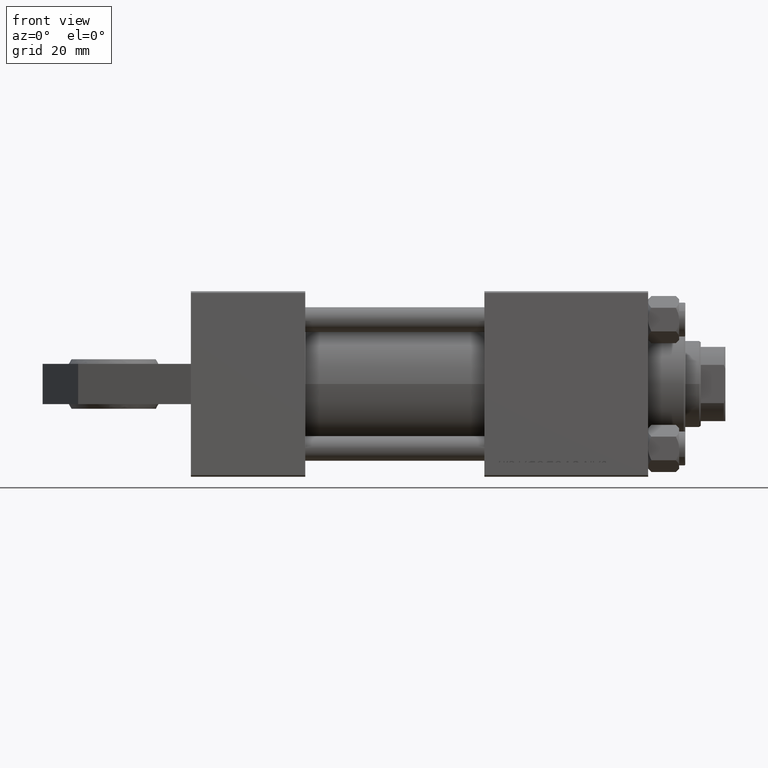
[diagram: clean part render]
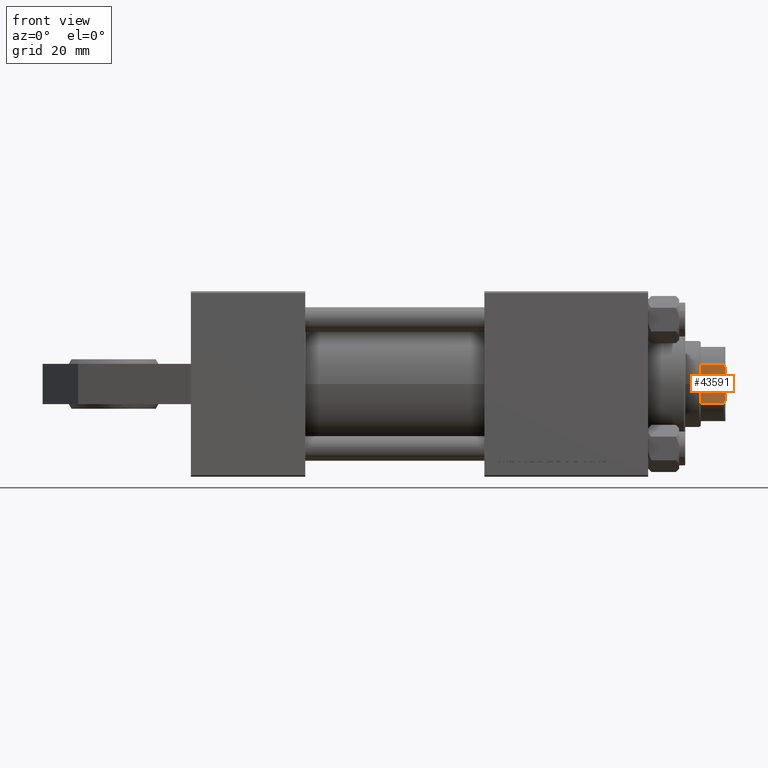
[diagram: same view with one face highlighted and labeled with its STEP entity id]
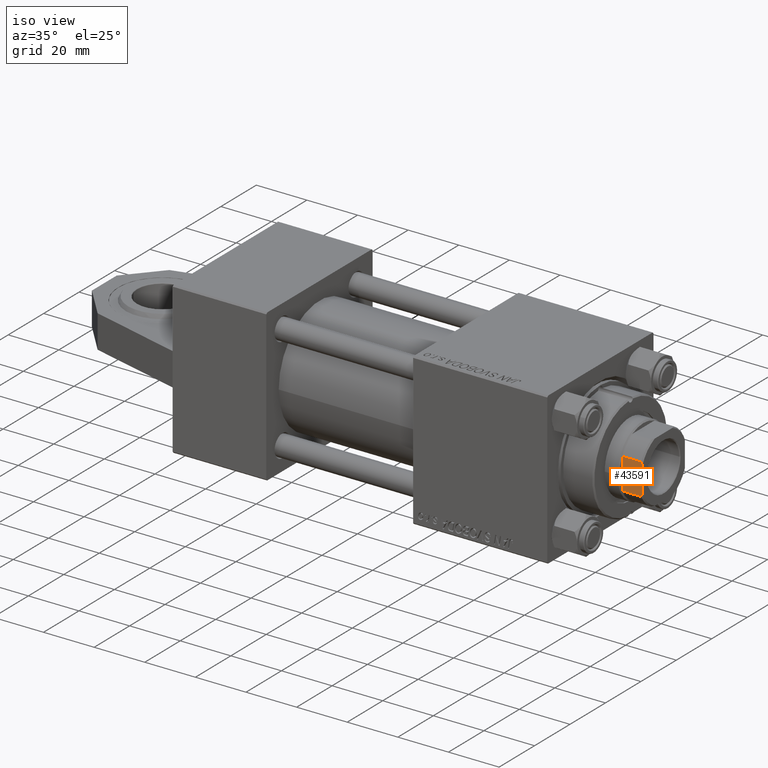
[diagram: same view with one face highlighted and labeled with its STEP entity id]
A machine part, front view. The second image highlights one B-rep face of the part: STEP entity #43591.
A second angle (iso view) of the same face is appended — the face is thin or edge-on in the first view.
In plain terms, the highlighted planar face has unit normal (0, 1, 0).
Its self-contained STEP definition (entity closure, byte-faithful):
#358 = CARTESIAN_POINT ( 'NONE',  ( 11.99999999999999645, 6.184658438426496652, -0.001000000000001000089 ) ) ;
#1015 = VECTOR ( 'NONE', #14133, 1000.000000000000000 ) ;
#1654 = CARTESIAN_POINT ( 'NONE',  ( 11.99999999999999645, 11.99999999999999645, 128.0000000000000000 ) ) ;
#2014 = DIRECTION ( 'NONE',  ( -2.891205793294678326E-16, 1.000000000000000000, -0.000000000000000000 ) ) ;
#3514 = CARTESIAN_POINT ( 'NONE',  ( 11.99999999999999645, 6.184658438426496652, 135.5000000000000284 ) ) ;
#3728 = CARTESIAN_POINT ( 'NONE',  ( 11.99999999999999645, 6.184658438426496652, 135.5000000000000284 ) ) ;
#5475 = LINE ( 'NONE', #1654, #1015 ) ;
#6998 = ORIENTED_EDGE ( 'NONE', *, *, #43619, .T. ) ;
#7082 = CARTESIAN_POINT ( 'NONE',  ( 11.99999999999999645, 5.794808544282254559, 135.6785991435214385 ) ) ;
#7432 = VERTEX_POINT ( 'NONE', #48240 ) ;
#7464 = CARTESIAN_POINT ( 'NONE',  ( 12.00000000000000178, -5.000000000000056843, 136.0000000000000000 ) ) ;
#8463 = ORIENTED_EDGE ( 'NONE', *, *, #48147, .T. ) ;
#10186 = CARTESIAN_POINT ( 'NONE',  ( 11.99999999999999467, -6.184658438426501981, -0.001000000000001000089 ) ) ;
#11683 = VECTOR ( 'NONE', #2014, 1000.000000000000000 ) ;
#12128 = VERTEX_POINT ( 'NONE', #3728 ) ;
#12834 = VERTEX_POINT ( 'NONE', #39105 ) ;
#14133 = DIRECTION ( 'NONE',  ( -2.891205793294678326E-16, 1.000000000000000000, -0.000000000000000000 ) ) ;
#14611 = EDGE_CURVE ( 'NONE', #15666, #47123, #17506, .T. ) ;
#15129 = EDGE_CURVE ( 'NONE', #15666, #12834, #48321, .T. ) ;
#15666 = VERTEX_POINT ( 'NONE', #48959 ) ;
#16322 = EDGE_CURVE ( 'NONE', #12128, #12834, #16736, .T. ) ;
#16736 = B_SPLINE_CURVE_WITH_KNOTS ( 'NONE', 3,
 ( #3514, #7082, #23104, #22597 ),
 .UNSPECIFIED., .F., .F.,
 ( 4, 4 ),
 ( 0.000000000000000000, 0.001285852097146085102 ),
 .UNSPECIFIED. ) ;
#16995 = ORIENTED_EDGE ( 'NONE', *, *, #16322, .T. ) ;
#17454 = CARTESIAN_POINT ( 'NONE',  ( 11.99999999999999467, -6.184658438426501981, 135.5000000000000284 ) ) ;
#17506 = B_SPLINE_CURVE_WITH_KNOTS ( 'NONE', 3,
 ( #7464, #41826, #22980, #17454 ),
 .UNSPECIFIED., .F., .F.,
 ( 4, 4 ),
 ( 8.673617379884035472E-19, 0.001285852097146073176 ),
 .UNSPECIFIED. ) ;
#17788 = LINE ( 'NONE', #10186, #46996 ) ;
#18189 = EDGE_CURVE ( 'NONE', #7432, #47123, #17788, .T. ) ;
#19564 = CARTESIAN_POINT ( 'NONE',  ( 11.99999999999999645, 6.184658438426496652, 128.0000000000000853 ) ) ;
#19818 = CARTESIAN_POINT ( 'NONE',  ( 11.99999999999999467, -6.184658438426501981, 135.5000000000000284 ) ) ;
#20175 = DIRECTION ( 'NONE',  ( 2.891205793294678326E-16, -1.000000000000000000, 0.000000000000000000 ) ) ;
#20589 = ORIENTED_EDGE ( 'NONE', *, *, #18189, .F. ) ;
#21871 = DIRECTION ( 'NONE',  ( -0.000000000000000000, -0.000000000000000000, 1.000000000000000000 ) ) ;
#22110 = VERTEX_POINT ( 'NONE', #19564 ) ;
#22436 = AXIS2_PLACEMENT_3D ( 'NONE', #35712, #38793, #20175 ) ;
#22597 = CARTESIAN_POINT ( 'NONE',  ( 11.99999999999999822, 5.000000000000037303, 136.0000000000000000 ) ) ;
#22980 = CARTESIAN_POINT ( 'NONE',  ( 12.00000000000000178, -5.794808544282264329, 135.6785991435214385 ) ) ;
#23015 = DIRECTION ( 'NONE',  ( -0.000000000000000000, -0.000000000000000000, 1.000000000000000000 ) ) ;
#23104 = CARTESIAN_POINT ( 'NONE',  ( 11.99999999999999822, 5.400255697127821719, 135.8460555011047006 ) ) ;
#23755 = FACE_OUTER_BOUND ( 'NONE', #24887, .T. ) ;
#24887 = EDGE_LOOP ( 'NONE', ( #6998, #16995, #26450, #47987, #20589, #8463 ) ) ;
#26450 = ORIENTED_EDGE ( 'NONE', *, *, #15129, .F. ) ;
#27822 = LINE ( 'NONE', #358, #41126 ) ;
#35465 = PLANE ( 'NONE',  #22436 ) ;
#35712 = CARTESIAN_POINT ( 'NONE',  ( 11.99999999999999645, 11.99999999999999645, 136.0000000000000000 ) ) ;
#38793 = DIRECTION ( 'NONE',  ( -1.000000000000000000, -2.891205793294678326E-16, 0.000000000000000000 ) ) ;
#39105 = CARTESIAN_POINT ( 'NONE',  ( 11.99999999999999822, 5.000000000000037303, 136.0000000000000000 ) ) ;
#39931 = CARTESIAN_POINT ( 'NONE',  ( 11.99999999999999645, 11.99999999999999645, 136.0000000000000000 ) ) ;
#41126 = VECTOR ( 'NONE', #23015, 1000.000000000000000 ) ;
#41826 = CARTESIAN_POINT ( 'NONE',  ( 12.00000000000000178, -5.400255697127827936, 135.8460555011047006 ) ) ;
#43591 = ADVANCED_FACE ( 'NONE', ( #23755 ), #35465, .F. ) ;
#43619 = EDGE_CURVE ( 'NONE', #22110, #12128, #27822, .T. ) ;
#46996 = VECTOR ( 'NONE', #21871, 1000.000000000000000 ) ;
#47123 = VERTEX_POINT ( 'NONE', #19818 ) ;
#47987 = ORIENTED_EDGE ( 'NONE', *, *, #14611, .T. ) ;
#48147 = EDGE_CURVE ( 'NONE', #7432, #22110, #5475, .T. ) ;
#48240 = CARTESIAN_POINT ( 'NONE',  ( 11.99999999999999467, -6.184658438426501981, 128.0000000000000853 ) ) ;
#48321 = LINE ( 'NONE', #39931, #11683 ) ;
#48959 = CARTESIAN_POINT ( 'NONE',  ( 12.00000000000000178, -5.000000000000056843, 136.0000000000000000 ) ) ;